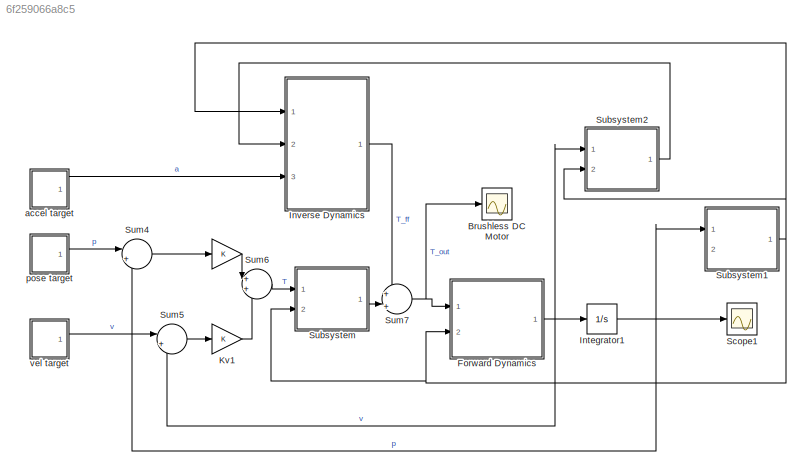
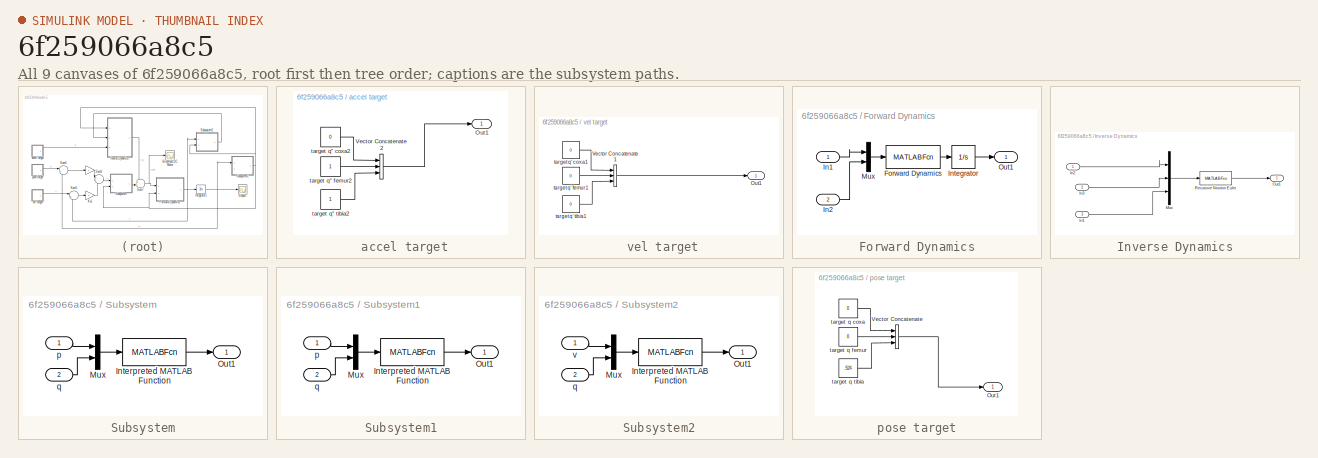
[diagram: thumbnail index - all 9 canvases of the model, root first then tree order]
MODEL slx_6f259066a8c5
KIND model
CONFIG AbsTol = auto
CONFIG EnableMultiTasking = off
CONFIG FixedStep = auto
CONFIG MaxStep = auto
CONFIG MinStep = auto
CONFIG RelTol = 1e-3
CONFIG SampleTimeConstraint = Unconstrained
CONFIG Solver = VariableStepAuto
CONFIG SolverName = VariableStepAuto
CONFIG StartTime = 0.0
CONFIG StopTime = 10.0
BLOCK [Gain]  
  OutDataTypeStr = Inherit: Inherit via internal rule
  ParamDataTypeStr = Inherit: Inherit via internal rule
  SaturateOnIntegerOverflow = off
BLOCK [SubSystem]  accel target
  Ports = [0, 1]
  RequestExecContextInheritance = off
BLOCK [Outport]  accel target/Out1
  IconDisplay = Port number
BLOCK [Concatenate]  accel target/Vector Concatenate2
  NumInputs = 3
  Ports = [3, 1]
BLOCK [Constant]  accel target/target q'' coxa2
  Value = 0
BLOCK [Constant]  accel target/target q'' femur2
BLOCK [Constant]  accel target/target q'' tibia2
BLOCK [SubSystem]  vel target
  Ports = [0, 1]
  RequestExecContextInheritance = off
BLOCK [Outport]  vel target/Out1
  IconDisplay = Port number
BLOCK [Concatenate]  vel target/Vector Concatenate1
  NumInputs = 3
  Ports = [3, 1]
BLOCK [Constant]  vel target/target q' coxa1
  Value = 0
BLOCK [Constant]  vel target/target q' femur1
  Value = 0
BLOCK [Constant]  vel target/target q' tibia1
  Value = 0
BLOCK [Scope] Brushless DC Motor
  Floating = off
  NumInputPorts = 1
  Ports = [1]
  ScopeSpecificationString = Simulink.scopes.TimeScopeBlockCfg('CurrentConfiguration', extmgr.ConfigurationSet(extmgr.Configuration('Core','General UI',true),extmgr.Configuration('Core','Source UI',true),extmgr.Configuration('Sources','WiredSimulink',true,'DataLoggingVariableName','ScopeData2'),extmgr.Configuration('Visuals','Time Domain',true),extmgr.Configuration('Tools','Plot Navigation',true),extmgr.Configuration('Tools',...<+40ch>
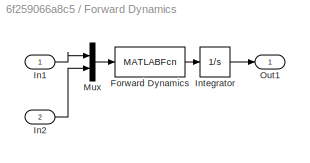
BLOCK [SubSystem] Forward Dynamics
  Ports = [2, 1]
  RequestExecContextInheritance = off
BLOCK [MATLABFcn] Forward Dynamics/Forward Dynamics
  MATLABFcn = Leg_Dynamics
  Ports = [1, 1]
BLOCK [Inport] Forward Dynamics/In1
  IconDisplay = Port number
BLOCK [Inport] Forward Dynamics/In2
  IconDisplay = Port number
  Port = 2
BLOCK [Integrator] Forward Dynamics/Integrator
  Ports = [1, 1]
BLOCK [Mux] Forward Dynamics/Mux
  DisplayOption = bar
  Inputs = 2
  Ports = [2, 1]
BLOCK [Outport] Forward Dynamics/Out1
  IconDisplay = Port number
BLOCK [Integrator] Integrator1
  Ports = [1, 1]
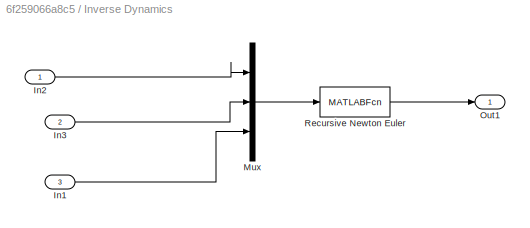
BLOCK [SubSystem] Inverse Dynamics
  Ports = [3, 1]
  RequestExecContextInheritance = off
BLOCK [Inport] Inverse Dynamics/In1
  IconDisplay = Port number
  Port = 3
BLOCK [Inport] Inverse Dynamics/In2
  IconDisplay = Port number
BLOCK [Inport] Inverse Dynamics/In3
  IconDisplay = Port number
  Port = 2
BLOCK [Mux] Inverse Dynamics/Mux
  DisplayOption = bar
  Inputs = 3
  Ports = [3, 1]
BLOCK [Outport] Inverse Dynamics/Out1
  IconDisplay = Port number
BLOCK [MATLABFcn] Inverse Dynamics/Recursive Newton Euler
  MATLABFcn = Inverse_Leg_Dynamics
  Ports = [1, 1]
BLOCK [Gain] Kv1
  OutDataTypeStr = Inherit: Inherit via internal rule
  ParamDataTypeStr = Inherit: Inherit via internal rule
  SaturateOnIntegerOverflow = off
BLOCK [Scope] Scope1
  Floating = off
  NumInputPorts = 1
  Ports = [1]
  ScopeSpecificationString = Simulink.scopes.TimeScopeBlockCfg('CurrentConfiguration', extmgr.ConfigurationSet(extmgr.Configuration('Core','General UI',true),extmgr.Configuration('Core','Source UI',true),extmgr.Configuration('Sources','WiredSimulink',true,'DataLoggingVariableName','ScopeData1'),extmgr.Configuration('Visuals','Time Domain',true),extmgr.Configuration('Tools','Plot Navigation',true),extmgr.Configuration('Tools',...<+40ch>
BLOCK [SubSystem] Subsystem
  Ports = [2, 1]
  RequestExecContextInheritance = off
BLOCK [MATLABFcn] Subsystem/Interpreted MATLAB Function
  MATLABFcn = Jacobian_Gain
  Ports = [1, 1]
BLOCK [Mux] Subsystem/Mux
  DisplayOption = bar
  Inputs = 2
  Ports = [2, 1]
BLOCK [Outport] Subsystem/Out1
  IconDisplay = Port number
BLOCK [Inport] Subsystem/p
  IconDisplay = Port number
BLOCK [Inport] Subsystem/q
  IconDisplay = Port number
  Port = 2
BLOCK [SubSystem] Subsystem1
  Ports = [2, 1]
  RequestExecContextInheritance = off
BLOCK [MATLABFcn] Subsystem1/Interpreted MATLAB Function
  MATLABFcn = Jacobian_Gain
  Ports = [1, 1]
BLOCK [Mux] Subsystem1/Mux
  DisplayOption = bar
  Inputs = 2
  Ports = [2, 1]
BLOCK [Outport] Subsystem1/Out1
  IconDisplay = Port number
BLOCK [Inport] Subsystem1/p
  IconDisplay = Port number
BLOCK [Inport] Subsystem1/q
  IconDisplay = Port number
  Port = 2
BLOCK [SubSystem] Subsystem2
  Ports = [2, 1]
  RequestExecContextInheritance = off
BLOCK [MATLABFcn] Subsystem2/Interpreted MATLAB Function
  MATLABFcn = Jacobian_Gain
  Ports = [1, 1]
BLOCK [Mux] Subsystem2/Mux
  DisplayOption = bar
  Inputs = 2
  Ports = [2, 1]
BLOCK [Outport] Subsystem2/Out1
  IconDisplay = Port number
BLOCK [Inport] Subsystem2/q
  IconDisplay = Port number
  Port = 2
BLOCK [Inport] Subsystem2/v
  IconDisplay = Port number
BLOCK [Sum] Sum4
  IconShape = round
  InputSameDT = off
  Inputs = |+-
  OutDataTypeStr = Inherit: Inherit via internal rule
  Ports = [2, 1]
  SaturateOnIntegerOverflow = off
BLOCK [Sum] Sum5
  IconShape = round
  InputSameDT = off
  Inputs = |+-
  OutDataTypeStr = Inherit: Inherit via internal rule
  Ports = [2, 1]
  SaturateOnIntegerOverflow = off
BLOCK [Sum] Sum6
  IconShape = round
  InputSameDT = off
  OutDataTypeStr = Inherit: Inherit via internal rule
  Ports = [2, 1]
  SaturateOnIntegerOverflow = off
BLOCK [Sum] Sum7
  IconShape = round
  InputSameDT = off
  Inputs = +|+||
  OutDataTypeStr = Inherit: Inherit via internal rule
  Ports = [2, 1]
  SaturateOnIntegerOverflow = off
BLOCK [SubSystem] pose target
  Ports = [0, 1]
  RequestExecContextInheritance = off
BLOCK [Outport] pose target/Out1
  IconDisplay = Port number
BLOCK [Concatenate] pose target/Vector Concatenate
  NumInputs = 3
  Ports = [3, 1]
BLOCK [Constant] pose target/target q coxa
  Value = 0
BLOCK [Constant] pose target/target q femur
  Value = 0
BLOCK [Constant] pose target/target q tibia
  Value = .524
LINE  :1 -> Sum6:1
LINE  accel target/Vector Concatenate2:1 ->  accel target/Out1:1
LINE  accel target/target q'' coxa2:1 ->  accel target/Vector Concatenate2:1
LINE  accel target/target q'' femur2:1 ->  accel target/Vector Concatenate2:2
LINE  accel target/target q'' tibia2:1 ->  accel target/Vector Concatenate2:3
LINE  accel target:1 -> Inverse Dynamics:3
LINE  vel target/Vector Concatenate1:1 ->  vel target/Out1:1
LINE  vel target/target q' coxa1:1 ->  vel target/Vector Concatenate1:1
LINE  vel target/target q' femur1:1 ->  vel target/Vector Concatenate1:2
LINE  vel target/target q' tibia1:1 ->  vel target/Vector Concatenate1:3
LINE  vel target:1 -> Sum5:1
LINE Forward Dynamics/Forward Dynamics:1 -> Forward Dynamics/Integrator:1
LINE Forward Dynamics/In1:1 -> Forward Dynamics/Mux:1
LINE Forward Dynamics/In2:1 -> Forward Dynamics/Mux:2
LINE Forward Dynamics/Integrator:1 -> Forward Dynamics/Out1:1
LINE Forward Dynamics/Mux:1 -> Forward Dynamics/Forward Dynamics:1
NET Forward Dynamics:1 -> Integrator1:1, Subsystem2:1, Sum5:2
NET Integrator1:1 -> Scope1:1, Subsystem1:1, Sum4:2
LINE Inverse Dynamics/In1:1 -> Inverse Dynamics/Mux:3
LINE Inverse Dynamics/In2:1 -> Inverse Dynamics/Mux:1
LINE Inverse Dynamics/In3:1 -> Inverse Dynamics/Mux:2
LINE Inverse Dynamics/Mux:1 -> Inverse Dynamics/Recursive Newton Euler:1
LINE Inverse Dynamics/Recursive Newton Euler:1 -> Inverse Dynamics/Out1:1
LINE Inverse Dynamics:1 -> Sum7:1
LINE Kv1:1 -> Sum6:2
LINE Subsystem/Interpreted MATLAB Function:1 -> Subsystem/Out1:1
LINE Subsystem/Mux:1 -> Subsystem/Interpreted MATLAB Function:1
LINE Subsystem/p:1 -> Subsystem/Mux:1
LINE Subsystem/q:1 -> Subsystem/Mux:2
LINE Subsystem1/Interpreted MATLAB Function:1 -> Subsystem1/Out1:1
LINE Subsystem1/Mux:1 -> Subsystem1/Interpreted MATLAB Function:1
LINE Subsystem1/p:1 -> Subsystem1/Mux:1
LINE Subsystem1/q:1 -> Subsystem1/Mux:2
NET Subsystem1:1 -> Forward Dynamics:2, Inverse Dynamics:1, Subsystem2:2, Subsystem:2
LINE Subsystem2/Interpreted MATLAB Function:1 -> Subsystem2/Out1:1
LINE Subsystem2/Mux:1 -> Subsystem2/Interpreted MATLAB Function:1
LINE Subsystem2/q:1 -> Subsystem2/Mux:2
LINE Subsystem2/v:1 -> Subsystem2/Mux:1
LINE Subsystem2:1 -> Inverse Dynamics:2
LINE Subsystem:1 -> Sum7:2
LINE Sum4:1 ->  :1
LINE Sum5:1 -> Kv1:1
LINE Sum6:1 -> Subsystem:1
NET Sum7:1 -> Brushless DC Motor:1, Forward Dynamics:1
LINE pose target/Vector Concatenate:1 -> pose target/Out1:1
LINE pose target/target q coxa:1 -> pose target/Vector Concatenate:1
LINE pose target/target q femur:1 -> pose target/Vector Concatenate:2
LINE pose target/target q tibia:1 -> pose target/Vector Concatenate:3
LINE pose target:1 -> Sum4:1
note: NET lines group one-source signal fan-out (src -> all destinations, sorted); 1:1 wires keep LINE
